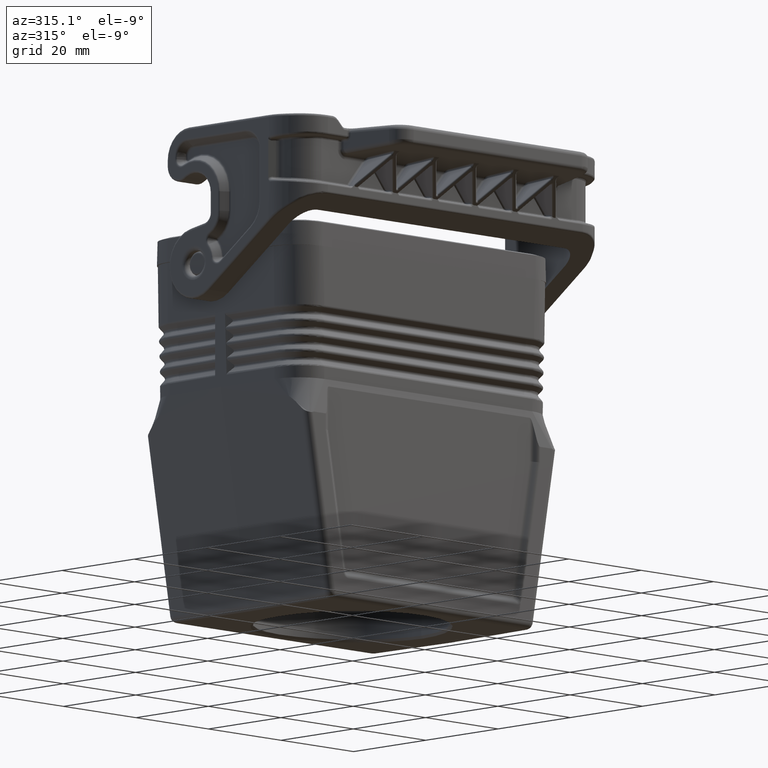
[diagram: clean part render]
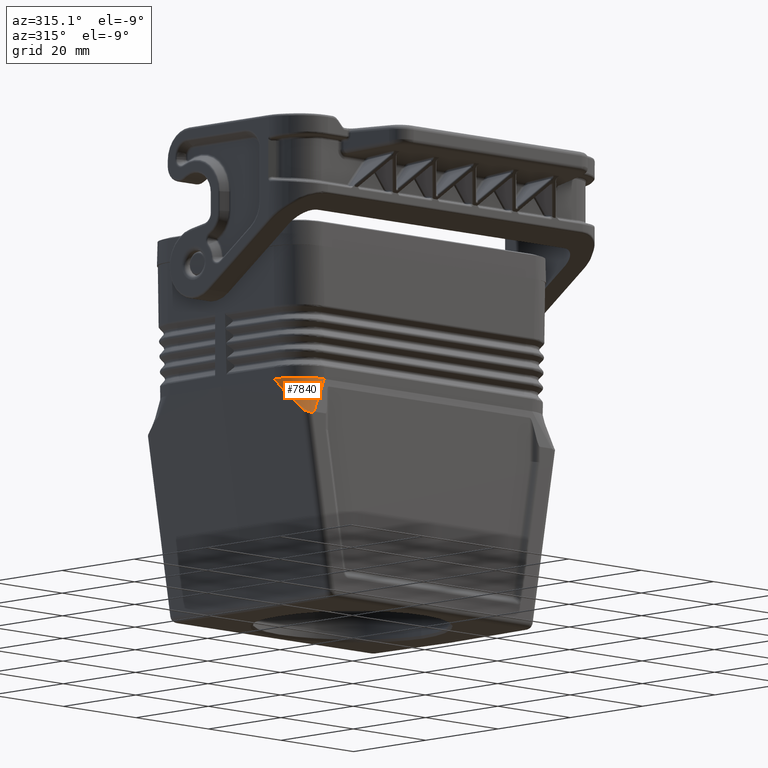
[diagram: same view with one face highlighted and labeled with its STEP entity id]
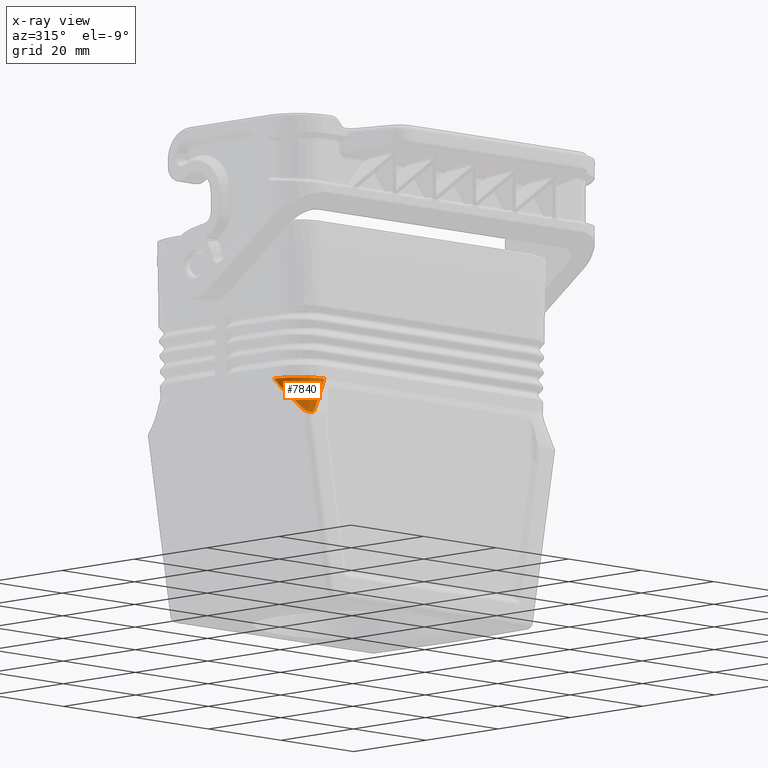
[diagram: x-ray of the same camera — body ghosted, the highlighted face saturated]
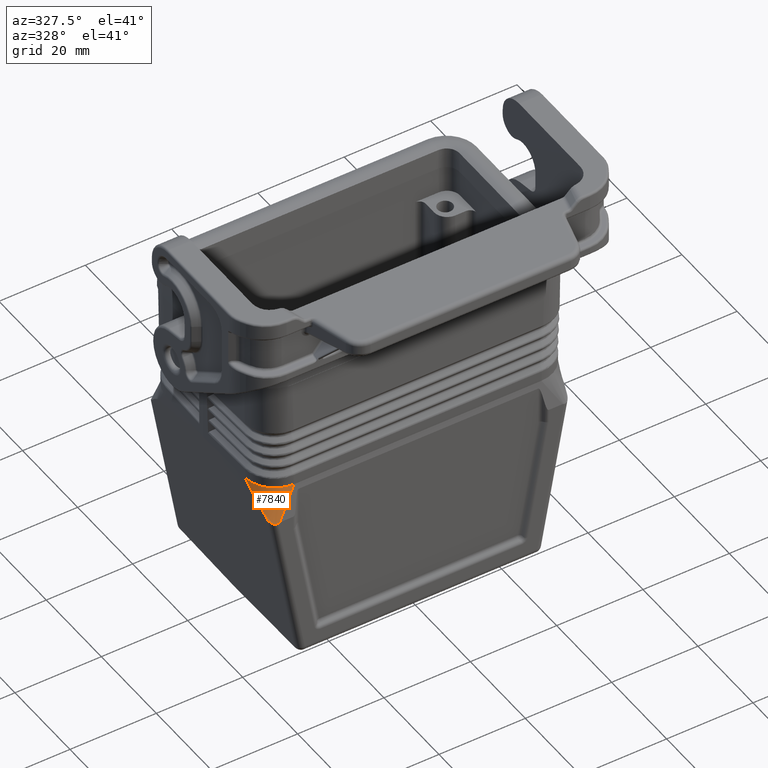
[diagram: same view with one face highlighted and labeled with its STEP entity id]
A machine part, auxiliary view. The second image highlights one B-rep face of the part: STEP entity #7840.
The next image is the same camera in x-ray: the body ghosted, the highlighted face saturated — about 0% of this face is hidden behind the body in this view.
A second angle (auxiliary view) of the same face is appended — the face is thin or edge-on in the first view.
In plain terms, the highlighted face is a freeform B-spline surface patch.
Its self-contained STEP definition (entity closure, byte-faithful):
#1180=CARTESIAN_POINT('',(116.867767352697,56.073696424318,
26.450398686016));
#1190=VERTEX_POINT('',#1180);
#1380=CARTESIAN_POINT('',(95.62,62.0761821389974,34.2285391921959));
#1390=DIRECTION('',(-0.00872653549837393,-0.984760073927079,
-0.17369929296727));
#1400=DIRECTION('',(0.,-0.17370590715595,0.984797572001032));
#1410=AXIS2_PLACEMENT_3D('',#1380,#1390,#1400);
#1420=PLANE('',#1410);
#1430=CARTESIAN_POINT('',(116.867766405432,56.0736933232706,
26.4503933502534));
#1440=CARTESIAN_POINT('',(116.867766405432,56.9774833987332,
26.4503933502534));
#1450=CARTESIAN_POINT('',(116.692767533118,57.8726780288106,
26.4503933616133));
#1460=CARTESIAN_POINT('',(116.238989326148,58.9888956286002,
26.4503933907643));
#1470=CARTESIAN_POINT('',(116.107889170004,59.2597434923264,
26.4503933992191));
#1480=CARTESIAN_POINT('',(115.664685174067,60.0429838624163,
26.4503934279893));
#1490=CARTESIAN_POINT('',(115.302677805598,60.5260731498051,
26.4503934513732));
#1500=CARTESIAN_POINT('',(114.461924513651,61.3891305380069,
26.4503935051613));
#1510=CARTESIAN_POINT('',(113.988477013475,61.7636596551609,
26.4503935355656));
#1520=CARTESIAN_POINT('',(113.21710676332,62.2272146131957,
26.4503935853971));
#1530=CARTESIAN_POINT('',(112.949783512782,62.365359813247,
26.4503936025656));
#1540=CARTESIAN_POINT('',(111.845826935375,62.8482016847684,
26.4503936729983));
#1550=CARTESIAN_POINT('',(110.955519998634,63.046574047537,
26.4503937297794));
#1560=CARTESIAN_POINT('',(110.052039626452,63.0702325087684,
26.4503937873198));
#1570=CARTESIAN_POINT('',(118.458948705005,61.2827214332063,
35.4132158993644));
#1580=CARTESIAN_POINT('',(118.458948705005,61.3778251516637,
35.4132158993644));
#1590=CARTESIAN_POINT('',(118.440263291828,61.4741379383824,
35.3941338360079));
#1600=CARTESIAN_POINT('',(118.393589619737,61.596499650854,
35.3451670965133));
#1610=CARTESIAN_POINT('',(118.37991437297,61.6270614770544,
35.330965079277));
#1620=CARTESIAN_POINT('',(118.332592479835,61.7178031469168,
35.2826379273788));
#1630=CARTESIAN_POINT('',(118.294611985075,61.7734879111231,
35.243358580478));
#1640=CARTESIAN_POINT('',(118.209428556507,61.8733990355231,
35.1530072431516));
#1650=CARTESIAN_POINT('',(118.160791470378,61.9190975942552,
35.101935252726));
#1660=CARTESIAN_POINT('',(118.079834029193,61.9782579225646,
35.0182301702533));
#1670=CARTESIAN_POINT('',(118.052364282882,61.9958720000834,
34.9893910963063));
#1680=CARTESIAN_POINT('',(117.941642968249,62.0581638700869,
34.8710809391624));
#1690=CARTESIAN_POINT('',(117.852469714337,62.0883659477026,
34.7757021332536));
#1700=CARTESIAN_POINT('',(117.762446999742,62.0990107875353,
34.6790478294574));
#1710=B_SPLINE_SURFACE_WITH_KNOTS('',3,1,((#1430,#1570),(#1440,#1580),(
#1450,#1590),(#1460,#1600),(#1470,#1610),(#1480,#1620),(#1490,#1630),(
#1500,#1640),(#1510,#1650),(#1520,#1660),(#1530,#1670),(#1540,#1680),(
#1550,#1690),(#1560,#1700)),.UNSPECIFIED.,.F.,.F.,.F.,(4,2,2,2,2,2,4),(2
,2),(0.,2.71136878210222,3.61515837613629,5.42273756420443,
7.23031675227258,8.13410634630665,10.8454751284089),(0.999995358485235,
8.79664513599187),.UNSPECIFIED.);
#1720=CARTESIAN_POINT('',(116.633089803291,62.1448906373101,
32.7833239832527));
#1730=CARTESIAN_POINT('',(116.577631400171,62.1564980022803,
32.7203040959771));
#1740=CARTESIAN_POINT('',(116.521685594274,62.168043434228,
32.6576598147648));
#1750=CARTESIAN_POINT('',(116.465277609285,62.1795261903627,
32.5953940835003));
#1760=CARTESIAN_POINT('',(116.40886958043,62.1910089554271,
32.5331283038146));
#1770=CARTESIAN_POINT('',(116.351999279014,62.2024290612974,
32.4712409845668));
#1780=CARTESIAN_POINT('',(116.294685638143,62.2137852664708,
32.4097382130701));
#1790=CARTESIAN_POINT('',(116.237371958708,62.225141479285,
32.3482354001926));
#1800=CARTESIAN_POINT('',(116.179614861316,62.2364338107152,
32.2871170295189));
#1810=CARTESIAN_POINT('',(116.121427162422,62.247660472388,
32.2263925960529));
#1820=CARTESIAN_POINT('',(116.063239432014,62.2588871401409,
32.1656681297002));
#1830=CARTESIAN_POINT('',(116.004621032332,62.2700481619607,
32.1053374688915));
#1840=CARTESIAN_POINT('',(115.945578602293,62.2811411039592,
32.0454140786283));
#1850=CARTESIAN_POINT('',(115.886536150537,62.2922340500381,
31.9854906663235));
#1860=CARTESIAN_POINT('',(115.827069607894,62.3032589472642,
31.9259743520342));
#1870=CARTESIAN_POINT('',(115.76717911071,62.3142125505764,
31.8668835262603));
#1880=CARTESIAN_POINT('',(115.707288605916,62.3251661552802,
31.8077926929789));
#1890=CARTESIAN_POINT('',(115.646974090187,62.3360485083045,
31.7491271116053));
#1900=CARTESIAN_POINT('',(115.586228537356,62.3468552921192,
31.6909116126678));
#1910=CARTESIAN_POINT('',(115.525482997855,62.3576620735627,
31.6326961265044));
#1920=CARTESIAN_POINT('',(115.464306365959,62.3683933461622,
31.5749303832633));
#1930=CARTESIAN_POINT('',(115.402683318945,62.3790433133686,
31.517648015464));
#1940=CARTESIAN_POINT('',(115.341060317645,62.3896932726745,
31.4603656901592));
#1950=CARTESIAN_POINT('',(115.278990842893,62.4002620174053,
31.4035662282703));
#1960=CARTESIAN_POINT('',(115.21644940456,62.4107416310863,
31.3472957916178));
#1970=CARTESIAN_POINT('',(115.153908064012,62.4212212283821,
31.2910254429457));
#1980=CARTESIAN_POINT('',(115.090894691913,62.4316118393973,
31.235283302221));
#1990=CARTESIAN_POINT('',(115.027370510908,62.4419023851602,
31.180134127909));
#2000=CARTESIAN_POINT('',(114.963846516948,62.452192900623,
31.1249851159816));
#2010=CARTESIAN_POINT('',(114.899811622231,62.4623835982981,
31.0704276721997));
#2020=CARTESIAN_POINT('',(114.835208347669,62.4724584536924,
31.0165555325139));
#2030=CARTESIAN_POINT('',(114.802906718489,62.4774958801262,
30.9896194694258));
#2040=CARTESIAN_POINT('',(114.770466450479,62.482503699761,
30.9628582224227));
#2050=CARTESIAN_POINT('',(114.737847505925,62.4874837797064,
30.936263217695));
#2060=CARTESIAN_POINT('',(114.705231055839,62.4924634788104,
30.9096702467662));
#2070=CARTESIAN_POINT('',(114.672447750433,62.4974136202223,
30.8832532310952));
#2080=CARTESIAN_POINT('',(114.639492058023,62.5023297322414,
30.8570378001746));
#2090=CARTESIAN_POINT('',(114.606536339854,62.5072458481033,
30.8308223487627));
#2100=CARTESIAN_POINT('',(114.573408260863,62.512127959473,
30.8048083396151));
#2110=CARTESIAN_POINT('',(114.5400978512,62.516970970647,
30.7790251628804));
#2120=CARTESIAN_POINT('',(114.506787417063,62.5218139853792,
30.7532419672018));
#2130=CARTESIAN_POINT('',(114.473294658141,62.5266179430084,
30.7276893593315));
#2140=CARTESIAN_POINT('',(114.439603688352,62.5313768010519,
30.7024023942559));
#2150=CARTESIAN_POINT('',(114.405912711979,62.5361356600253,
30.6771154242392));
#2160=CARTESIAN_POINT('',(114.372023491377,62.5408494938086,
30.6520936769168));
#2170=CARTESIAN_POINT('',(114.337912347572,62.5455107413725,
30.6273812079428));
#2180=CARTESIAN_POINT('',(114.303801245601,62.5501719832198,
30.6026687692759));
#2190=CARTESIAN_POINT('',(114.269468107097,62.5547807705875,
30.5782648677712));
#2200=CARTESIAN_POINT('',(114.23487889228,62.5593270126158,
30.5542284220635));
#2210=CARTESIAN_POINT('',(114.200289828528,62.5638732347887,
30.5301920813331));
#2220=CARTESIAN_POINT('',(114.165444398584,62.5683571571054,
30.5065218192389));
#2230=CARTESIAN_POINT('',(114.130294333259,62.5727643133775,
30.483302074503));
#2240=CARTESIAN_POINT('',(114.112719285279,62.5749678934341,
30.4716921920165));
#2250=CARTESIAN_POINT('',(114.095067711143,62.5771522158334,
30.4601953323288));
#2260=CARTESIAN_POINT('',(114.07733162851,62.5793148180773,
30.4488258572026));
#2270=CARTESIAN_POINT('',(114.059596057549,62.5814773579317,
30.437456710077));
#2280=CARTESIAN_POINT('',(114.041759260748,62.5836202262656,
30.4262041729728));
#2290=CARTESIAN_POINT('',(114.023821291448,62.5857389892089,
30.4150933803275));
#2300=CARTESIAN_POINT('',(114.005883301106,62.5878577546375,
30.4039825746488));
#2310=CARTESIAN_POINT('',(113.987844184425,62.5899524358983,
30.3930133907427));
#2320=CARTESIAN_POINT('',(113.96970038588,62.5920179556842,
30.3822147922974));
#2330=CARTESIAN_POINT('',(113.951556554532,62.5940834792043,
30.3714161743293));
#2340=CARTESIAN_POINT('',(113.933308001843,62.596119888844,
30.3607878738243));
#2350=CARTESIAN_POINT('',(113.914945959094,62.5981211322383,
30.3503646444366));
#2360=CARTESIAN_POINT('',(113.896583908231,62.6001223765169,
30.3399414104434));
#2370=CARTESIAN_POINT('',(113.878108201553,62.6020885443125,
30.3297227470509));
#2380=CARTESIAN_POINT('',(113.859503280617,62.604011935695,
30.3197530891006));
#2390=CARTESIAN_POINT('',(113.840898437702,62.6059353190117,
30.3097834729587));
#2400=CARTESIAN_POINT('',(113.822163941084,62.6078160968003,
30.3000619156035));
#2410=CARTESIAN_POINT('',(113.803275887038,62.6096436394831,
30.2906498807855));
#2420=CARTESIAN_POINT('',(113.784388132502,62.6114711531864,
30.2812379952149));
#2430=CARTESIAN_POINT('',(113.765345734031,62.6132457722406,
30.2721337566025));
#2440=CARTESIAN_POINT('',(113.746115113454,62.6149514488875,
30.2634298318944));
#2450=CARTESIAN_POINT('',(113.736501470625,62.6158041393142,
30.2590786242452));
#2460=CARTESIAN_POINT('',(113.726836895677,62.6166398630613,
30.2548261652342));
#2470=CARTESIAN_POINT('',(113.717097180555,62.6174571898363,
30.2506817798815));
#2480=CARTESIAN_POINT('',(113.707359981429,62.6182743054765,
30.246538465121));
#2490=CARTESIAN_POINT('',(113.697558731359,62.619072075722,
30.2425080436998));
#2500=CARTESIAN_POINT('',(113.687698921256,62.6198456684134,
30.2386176351577));
#2510=CARTESIAN_POINT('',(113.677839070871,62.6206192642653,
30.2347272107211));
#2520=CARTESIAN_POINT('',(113.667920543658,62.6213687266937,
30.2309765548467));
#2530=CARTESIAN_POINT('',(113.657944964532,62.6220883676643,
30.2273978330252));
#2540=CARTESIAN_POINT('',(113.647969377179,62.6228080092285,
30.2238191082521));
#2550=CARTESIAN_POINT('',(113.637936372168,62.6234979148789,
30.2204118510619));
#2560=CARTESIAN_POINT('',(113.62784302104,62.6241508925164,
30.2172169830221));
#2570=CARTESIAN_POINT('',(113.617749787619,62.6248038625389,
30.2140221522405));
#2580=CARTESIAN_POINT('',(113.607595293845,62.6254200657569,
30.2110388424664));
#2590=CARTESIAN_POINT('',(113.597372796324,62.6259895674254,
30.2083237161722));
#2600=CARTESIAN_POINT('',(113.587150744228,62.6265590442789,
30.2056087081842));
#2610=CARTESIAN_POINT('',(113.57685851404,62.6270821213766,
30.2031602819434));
#2620=CARTESIAN_POINT('',(113.566489590054,62.6275438183289,
30.201063693434));
#2630=B_SPLINE_CURVE_WITH_KNOTS('',3,(#1720,#1730,#1740,#1750,#1760,
#1770,#1780,#1790,#1800,#1810,#1820,#1830,#1840,#1850,#1860,#1870,#1880,
#1890,#1900,#1910,#1920,#1930,#1940,#1950,#1960,#1970,#1980,#1990,#2000,
#2010,#2020,#2030,#2040,#2050,#2060,#2070,#2080,#2090,#2100,#2110,#2120,
#2130,#2140,#2150,#2160,#2170,#2180,#2190,#2200,#2210,#2220,#2230,#2240,
#2250,#2260,#2270,#2280,#2290,#2300,#2310,#2320,#2330,#2340,#2350,#2360,
#2370,#2380,#2390,#2400,#2410,#2420,#2430,#2440,#2450,#2460,#2470,#2480,
#2490,#2500,#2510,#2520,#2530,#2540,#2550,#2560,#2570,#2580,#2590,#2600,
#2610,#2620),.UNSPECIFIED.,.F.,.F.,(4,3,3,3,3,3,3,3,3,3,3,3,3,3,3,3,3,3,
3,3,3,3,3,3,3,3,3,3,3,3,4),(0.,0.2543212804855,0.508770627312849,
0.763295054460754,1.0178494399547,1.27239674625233,1.52690786965612,
1.7813610847656,2.03574102941577,2.29003718725912,2.54424194295308,
2.67133212586875,2.79849760542328,2.92569738649076,3.05288996472593,
3.18004916579317,3.30716579056993,3.43424760844737,3.49778209373433,
3.56136344126345,3.62499995870063,3.68863856665145,3.7522456609083,
3.81581084563619,3.87934771000993,3.91114199032281,3.94300994613961,
3.97488935488126,4.00673515213693,4.03853288330411,4.07030091397632),
.UNSPECIFIED.);
#2640=SURFACE_CURVE('',#2630,(#1710,#1420),.CURVE_3D.);
#2650=CARTESIAN_POINT('',(116.633089803286,62.1448906373113,
32.7833239832588));
#2660=VERTEX_POINT('',#2650);
#2670=CARTESIAN_POINT('',(113.566489590054,62.627543818329,
30.201063693434));
#2680=VERTEX_POINT('',#2670);
#2690=EDGE_CURVE('',#2660,#2680,#2640,.T.);
#3310=CARTESIAN_POINT('',(118.120000000043,25.16326959705,
33.8049876223571));
#3320=DIRECTION('',(-1.,0.,0.));
#3330=DIRECTION('',(0.,0.,1.));
#3340=AXIS2_PLACEMENT_3D('',#3310,#3320,#3330);
#3350=PLANE('',#3340);
#4590=CARTESIAN_POINT('',(118.120000000043,60.4795624626931,
33.5896768623627));
#4600=VERTEX_POINT('',#4590);
#4630=CARTESIAN_POINT('',(118.120000000043,60.4795624626947,
33.589676862363));
#4640=CARTESIAN_POINT('',(118.120000000043,60.4675251821686,
33.5838119675431));
#4650=CARTESIAN_POINT('',(118.120000000043,60.4554014162256,
33.5781347359832));
#4660=CARTESIAN_POINT('',(118.120000000043,60.4431910129919,
33.5726717090792));
#4670=CARTESIAN_POINT('',(118.120000000043,60.4309806185187,
33.5672086860946));
#4680=CARTESIAN_POINT('',(118.120000000043,60.4186834043954,
33.5619596740668));
#4690=CARTESIAN_POINT('',(118.120000000043,60.4062972993191,
33.5569554195649));
#4700=CARTESIAN_POINT('',(118.120000000043,60.3939112431183,
33.5519511848098));
#4710=CARTESIAN_POINT('',(118.120000000036,60.3814359758827,
33.5471914269793));
#4720=CARTESIAN_POINT('',(118.120000000036,60.3688679218323,
33.5427132334677));
#4730=CARTESIAN_POINT('',(118.120000000036,60.35629998772,
33.538235082692));
#4740=CARTESIAN_POINT('',(118.120000000043,60.3436387211736,
33.5340381001687));
#4750=CARTESIAN_POINT('',(118.120000000043,60.3308801413462,
33.5301687290287));
#4760=CARTESIAN_POINT('',(118.120000000043,60.3181318944907,
33.5263024916311));
#4770=CARTESIAN_POINT('',(118.120000000041,60.30523868426,
33.5227488913071));
#4780=CARTESIAN_POINT('',(118.120000000041,60.2922214716012,
33.5195808242563));
#4790=CARTESIAN_POINT('',(118.120000000041,60.2792063799855,
33.5164132734149));
#4800=CARTESIAN_POINT('',(118.120000000031,60.2660761156856,
33.5136335214159));
#4810=CARTESIAN_POINT('',(118.120000000031,60.2528740826467,
33.5113281895997));
#4820=CARTESIAN_POINT('',(118.120000000031,60.23967211702,
33.5090228695549));
#4830=CARTESIAN_POINT('',(118.120000000038,60.226397218041,
33.507191342727));
#4840=CARTESIAN_POINT('',(118.120000000038,60.2130901987655,
33.5059316367571));
#4850=CARTESIAN_POINT('',(118.120000000038,60.1997835275778,
33.5046719637389));
#4860=CARTESIAN_POINT('',(118.120000000043,60.1864421637019,
33.5039833138561));
#4870=CARTESIAN_POINT('',(118.120000000043,60.1731104650293,
33.5039833138561));
#4880=B_SPLINE_CURVE_WITH_KNOTS('',3,(#4630,#4640,#4650,#4660,#4670,
#4680,#4690,#4700,#4710,#4720,#4730,#4740,#4750,#4760,#4770,#4780,#4790,
#4800,#4810,#4820,#4830,#4840,#4850,#4860,#4870),.UNSPECIFIED.,.F.,.F.,(
4,3,3,3,3,3,3,3,4),(0.,0.040152223897592,0.0802561968568261,
0.120306544497499,0.160315808546613,0.200403366368161,0.240614152455916,
0.280772688765914,0.320814728955825),.UNSPECIFIED.);
#4890=SURFACE_CURVE('',#4880,(#3350,#1710),.CURVE_3D.);
#4900=CARTESIAN_POINT('',(118.120000000043,60.1731104650293,
33.5039833138561));
#4910=VERTEX_POINT('',#4900);
#4920=EDGE_CURVE('',#4600,#4910,#4890,.T.);
#6290=CARTESIAN_POINT('',(110.052044216625,63.0702319305791,
26.4503986860161));
#6300=CARTESIAN_POINT('',(117.762078277644,62.0990572326702,
34.6786543241033));
#6310=B_SPLINE_CURVE_WITH_KNOTS('',1,(#6290,#6300),.UNSPECIFIED.,.F.,.F.
,(2,2),(0.999999999999961,8.79627228966545),.UNSPECIFIED.);
#6320=CARTESIAN_POINT('',(110.052044216625,63.0702319305791,
26.450398686016));
#6330=VERTEX_POINT('',#6320);
#6340=EDGE_CURVE('',#6330,#2680,#6310,.T.);
#6350=ORIENTED_EDGE('',*,*,#6340,.T.);
#6360=CARTESIAN_POINT('',(116.867767352697,56.073696424318,
26.4503986860161));
#6370=CARTESIAN_POINT('',(116.867767352697,56.9774860183521,
26.4503986860161));
#6380=CARTESIAN_POINT('',(116.69276857344,57.8726801728379,
26.4503986860161));
#6390=CARTESIAN_POINT('',(116.238990608829,58.9888971809634,
26.4503986860161));
#6400=CARTESIAN_POINT('',(116.10789052259,59.2597449016422,
26.4503986860161));
#6410=CARTESIAN_POINT('',(115.66468676233,60.0429848594726,
26.4503986860161));
#6420=CARTESIAN_POINT('',(115.302679586761,60.5260738924182,
26.4503986860161));
#6430=CARTESIAN_POINT('',(114.461926744622,61.3891308263025,
26.4503986860161));
#6440=CARTESIAN_POINT('',(113.988479497344,61.7636597476965,
26.4503986860161));
#6450=CARTESIAN_POINT('',(113.217109658208,62.2272144649864,
26.4503986860161));
#6460=CARTESIAN_POINT('',(112.949786550459,62.3653595932829,
26.4503986860161));
#6470=CARTESIAN_POINT('',(111.845830564347,62.8482012144418,
26.4503986860161));
#6480=CARTESIAN_POINT('',(110.955524104538,63.0465734770949,
26.4503986860161));
#6490=CARTESIAN_POINT('',(110.052044216625,63.0702319305791,
26.4503986860161));
#6500=B_SPLINE_CURVE_WITH_KNOTS('',3,(#6360,#6370,#6380,#6390,#6400,
#6410,#6420,#6430,#6440,#6450,#6460,#6470,#6480,#6490),.UNSPECIFIED.,.F.
,.F.,(4,2,2,2,2,2,4),(0.,2.71136878210222,3.61515837613629,
5.42273756420443,7.23031675227258,8.13410634630665,10.8454751284089),
.UNSPECIFIED.);
#6510=CARTESIAN_POINT('',(110.628428305075,63.0312953805327,
26.4503986860161));
#6520=VERTEX_POINT('',#6510);
#6530=EDGE_CURVE('',#6520,#6330,#6500,.T.);
#6540=ORIENTED_EDGE('',*,*,#6530,.T.);
#6550=EDGE_CURVE('',#1190,#6520,#6500,.T.);
#6560=ORIENTED_EDGE('',*,*,#6550,.T.);
#6570=CARTESIAN_POINT('',(115.849023241319,52.7386500789544,
20.7120098818667));
#6580=CARTESIAN_POINT('',(118.458948705005,61.2827214332063,
35.4132158993644));
#6590=B_SPLINE_CURVE_WITH_KNOTS('',1,(#6570,#6580),.UNSPECIFIED.,.F.,.F.
,(2,2),(-3.99175427695547,8.79664513599187),.UNSPECIFIED.);
#6600=EDGE_CURVE('',#1190,#4910,#6590,.T.);
#6610=ORIENTED_EDGE('',*,*,#6600,.F.);
#6620=ORIENTED_EDGE('',*,*,#4920,.T.);
#6630=CARTESIAN_POINT('',(116.620000000043,60.3668751818686,
34.2285391921959));
#6640=DIRECTION('',(0.,-0.17370590715595,0.984797572001032));
#6650=DIRECTION('',(0.,0.984797572001032,0.17370590715595));
#6660=AXIS2_PLACEMENT_3D('',#6630,#6640,#6650);
#6670=CYLINDRICAL_SURFACE('',#6660,1.5);
#6680=CARTESIAN_POINT('',(118.120000000043,60.4795624626947,
33.589676862363));
#6690=CARTESIAN_POINT('',(118.120000000043,60.490138143592,
33.594829625562));
#6700=CARTESIAN_POINT('',(118.119871934601,60.5008659720065,
33.5997034509997));
#6710=CARTESIAN_POINT('',(118.119609821284,60.5117217805889,
33.6043019131906));
#6720=CARTESIAN_POINT('',(118.119347709365,60.5225775312198,
33.6089003508336));
#6730=CARTESIAN_POINT('',(118.11895153798,60.5335608511166,
33.6132233029452));
#6740=CARTESIAN_POINT('',(118.118417357844,60.5446444267754,
33.6172778915659));
#6750=CARTESIAN_POINT('',(118.117853991622,60.5563335775434,
33.6215540113985));
#6760=CARTESIAN_POINT('',(118.117137106925,60.5681338490601,
33.6255315411734));
#6770=CARTESIAN_POINT('',(118.11626475763,60.580011357439,
33.6292227769475));
#6780=CARTESIAN_POINT('',(118.115392408022,60.5918888700893,
33.6329140140491));
#6790=CARTESIAN_POINT('',(118.114364615205,60.603843285941,
33.6363189438373));
#6800=CARTESIAN_POINT('',(118.113182220619,60.6158403625508,
33.6394530796414));
#6810=CARTESIAN_POINT('',(118.111999823158,60.627837468321,
33.6425872230635));
#6820=CARTESIAN_POINT('',(118.110662852233,60.6398769984429,
33.6454505894071));
#6830=CARTESIAN_POINT('',(118.109174810814,60.6519255000687,
33.6480609405742));
#6840=CARTESIAN_POINT('',(118.107687482466,60.6639682280365,
33.6506700408575));
#6850=CARTESIAN_POINT('',(118.106046967408,60.6760407632442,
33.6530313764321));
#6860=CARTESIAN_POINT('',(118.104251283681,60.6881480135757,
33.6551666908705));
#6870=CARTESIAN_POINT('',(118.100660431081,60.712359042869,
33.6594367075135));
#6880=CARTESIAN_POINT('',(118.096451775004,60.7366792199761,
33.6627976210347));
#6890=CARTESIAN_POINT('',(118.09164194473,60.7609843725665,
33.6653756058186));
#6900=CARTESIAN_POINT('',(118.086832104642,60.7852895747527,
33.667953595863));
#6910=CARTESIAN_POINT('',(118.081421010026,60.8095800961067,
33.6697485586315));
#6920=CARTESIAN_POINT('',(118.075440847733,60.8337366499993,
33.6708713374414));
#6930=CARTESIAN_POINT('',(118.069460547759,60.8578937600502,
33.671994142101));
#6940=CARTESIAN_POINT('',(118.062911833485,60.8819145285315,
33.6724445036935));
#6950=CARTESIAN_POINT('',(118.055840879669,60.9056906282834,
33.6723208053216));
#6960=CARTESIAN_POINT('',(118.048766929063,60.9294768047536,
33.6721970545241));
#6970=CARTESIAN_POINT('',(118.041142451931,60.9531141464706,
33.6714983946918));
#6980=CARTESIAN_POINT('',(118.032997208203,60.9765407413735,
33.6702967011449));
#6990=CARTESIAN_POINT('',(118.024850061192,60.9999728103227,
33.6690947268006));
#7000=CARTESIAN_POINT('',(118.01619126289,61.0231704868481,
33.667391211566));
#7010=CARTESIAN_POINT('',(118.007029882103,61.0461436009679,
33.6652416576434));
#7020=CARTESIAN_POINT('',(117.997867136123,61.0691201384512,
33.6630917834028));
#7030=CARTESIAN_POINT('',(117.988198595699,61.0918774761377,
33.6604942934291));
#7040=CARTESIAN_POINT('',(117.978051687977,61.1143752435779,
33.6574944087375));
#7050=CARTESIAN_POINT('',(117.966702117857,61.139539559261,
33.6541389626653));
#7060=CARTESIAN_POINT('',(117.954753905423,61.1643790940429,
33.6502800165217));
#7070=CARTESIAN_POINT('',(117.942251872153,61.1888390645981,
33.6459712149842));
#7080=CARTESIAN_POINT('',(117.929749006974,61.213300662765,
33.6416621267311));
#7090=CARTESIAN_POINT('',(117.916696141061,61.2373756782855,
33.6369046536509));
#7100=CARTESIAN_POINT('',(117.903134267902,61.261031348009,
33.6317406678487));
#7110=CARTESIAN_POINT('',(117.889565275744,61.2846994352433,
33.6265739713285));
#7120=CARTESIAN_POINT('',(117.875447804405,61.3080157417697,
33.6209847266126));
#7130=CARTESIAN_POINT('',(117.860815058563,61.3309457382899,
33.6150016254676));
#7140=CARTESIAN_POINT('',(117.846182327032,61.3538757123836,
33.6090185301743));
#7150=CARTESIAN_POINT('',(117.831034337859,61.3764192563416,
33.6026414810201));
#7160=CARTESIAN_POINT('',(117.815408891161,61.398542271162,
33.5958947589907));
#7170=CARTESIAN_POINT('',(117.799783453567,61.4206652730933,
33.589148040892));
#7180=CARTESIAN_POINT('',(117.783680643036,61.4423675572471,
33.58203161198));
#7190=CARTESIAN_POINT('',(117.767142961852,61.4636165554233,
33.5745667225897));
#7200=CARTESIAN_POINT('',(117.750605279569,61.4848655550103,
33.5671018327037));
#7210=CARTESIAN_POINT('',(117.733632864429,61.5056610449393,
33.5592884893459));
#7220=CARTESIAN_POINT('',(117.716272752145,61.5259730959047,
33.5511458041776));
#7230=CARTESIAN_POINT('',(117.698912624716,61.5462851645911,
33.5430031119053));
#7240=CARTESIAN_POINT('',(117.681164980065,61.5661135570711,
33.5345311187147));
#7250=CARTESIAN_POINT('',(117.663080977694,61.5854320239338,
33.5257473417224));
#7260=CARTESIAN_POINT('',(117.644996942567,61.604750525788,
33.5169635488199));
#7270=CARTESIAN_POINT('',(117.626576763039,61.6235588658084,
33.5078680383353));
#7280=CARTESIAN_POINT('',(117.607875086399,61.6418354123075,
33.498477025589));
#7290=CARTESIAN_POINT('',(117.589183852155,61.66010175379,
33.4890912564723));
#7300=CARTESIAN_POINT('',(117.570180610778,61.6778690792939,
33.4793955093525));
#7310=CARTESIAN_POINT('',(117.550837952382,61.6951829279469,
33.4693584966553));
#7320=CARTESIAN_POINT('',(117.531500837002,61.71249181498,
33.4593243602592));
#7330=CARTESIAN_POINT('',(117.511847685774,61.7293248891228,
33.4489605527565));
#7340=CARTESIAN_POINT('',(117.491922252794,61.7456649041163,
33.438266884421));
#7350=CARTESIAN_POINT('',(117.471996861025,61.7620048853145,
33.4275732382027));
#7360=CARTESIAN_POINT('',(117.451799352611,61.7778516106764,
33.4165497951901));
#7370=CARTESIAN_POINT('',(117.431378498258,61.7931903604328,
33.4051953588719));
#7380=CARTESIAN_POINT('',(117.410957663959,61.8085290951256,
33.3938409337046));
#7390=CARTESIAN_POINT('',(117.390313686429,61.823359661451,
33.3821555887362));
#7400=CARTESIAN_POINT('',(117.36949979502,61.8376711015854,
33.3701372973892));
#7410=CARTESIAN_POINT('',(117.348685903283,61.8519825419451,
33.358119005853));
#7420=CARTESIAN_POINT('',(117.327702337514,61.8657746720499,
33.3457678456127));
#7430=CARTESIAN_POINT('',(117.306606010004,61.8790413130994,
33.3330812685474));
#7440=CARTESIAN_POINT('',(117.28550966184,61.8923079671376,
33.3203946790613));
#7450=CARTESIAN_POINT('',(117.264300831809,61.9050489604708,
33.3073727527985));
#7460=CARTESIAN_POINT('',(117.243039061066,61.9172636913492,
33.2940129098437));
#7470=CARTESIAN_POINT('',(117.221777248128,61.929478446468,
33.280653040376));
#7480=CARTESIAN_POINT('',(117.20046281907,61.9411667835127,
33.2669553398918));
#7490=CARTESIAN_POINT('',(117.179156535306,61.9523342377554,
33.2529178681794));
#7500=CARTESIAN_POINT('',(117.15785002346,61.963501811544,
33.238880246198));
#7510=CARTESIAN_POINT('',(117.136552728008,61.9741480246116,
33.2245034292308));
#7520=CARTESIAN_POINT('',(117.115322817048,61.9842857844366,
33.2097855299732));
#7530=CARTESIAN_POINT('',(117.094088136835,61.9944258216876,
33.1950643243711));
#7540=CARTESIAN_POINT('',(117.072861540847,62.0040854452032,
33.1799607409073));
#7550=CARTESIAN_POINT('',(117.05170177673,62.01327473696,
33.1644705056897));
#7560=CARTESIAN_POINT('',(117.030542029703,62.022464021295,
33.148980282983));
#7570=CARTESIAN_POINT('',(117.009449597852,62.0311828291725,
33.1331035427893));
#7580=CARTESIAN_POINT('',(116.98848292918,62.0394467179119,
33.1168411844719));
#7590=CARTESIAN_POINT('',(116.967516241122,62.0477106142918,
33.1005788111189));
#7600=CARTESIAN_POINT('',(116.946675856503,62.0555194806785,
33.0839310286093));
#7610=CARTESIAN_POINT('',(116.926016894938,62.0628943429688,
33.0669048898643));
#7620=CARTESIAN_POINT('',(116.905359520715,62.0702686386076,
33.0498800593317));
#7630=CARTESIAN_POINT('',(116.88488361955,62.0772095992932,
33.0324776887005));
#7640=CARTESIAN_POINT('',(116.864592281415,62.0837562800219,
33.014668659161));
#7650=CARTESIAN_POINT('',(116.844304328775,62.0903018684743,
32.9968626009566));
#7660=CARTESIAN_POINT('',(116.824216490249,62.096447860856,
32.9786627707577));
#7670=CARTESIAN_POINT('',(116.804371390025,62.1022204428653,
32.9600857310667));
#7680=CARTESIAN_POINT('',(116.784526291821,62.107993024287,
32.9415086932666));
#7690=CARTESIAN_POINT('',(116.764924414115,62.1133921604472,
32.9225548376806));
#7700=CARTESIAN_POINT('',(116.745601083495,62.1184462162832,
32.903249226046));
#7710=CARTESIAN_POINT('',(116.726275140884,62.1235009552904,
32.8839410048161));
#7720=CARTESIAN_POINT('',(116.707239197403,62.128207924687,
32.8642931063329));
#7730=CARTESIAN_POINT('',(116.688487658431,62.132604154094,
32.8443033645528));
#7740=CARTESIAN_POINT('',(116.669734448194,62.1370007753233,
32.8243118411493));
#7750=CARTESIAN_POINT('',(116.651263332809,62.1410869434056,
32.8039753853455));
#7760=CARTESIAN_POINT('',(116.633089803286,62.1448906373113,
32.7833239832587));
#7770=B_SPLINE_CURVE_WITH_KNOTS('',3,(#6680,#6690,#6700,#6710,#6720,
#6730,#6740,#6750,#6760,#6770,#6780,#6790,#6800,#6810,#6820,#6830,#6840,
#6850,#6860,#6870,#6880,#6890,#6900,#6910,#6920,#6930,#6940,#6950,#6960,
#6970,#6980,#6990,#7000,#7010,#7020,#7030,#7040,#7050,#7060,#7070,#7080,
#7090,#7100,#7110,#7120,#7130,#7140,#7150,#7160,#7170,#7180,#7190,#7200,
#7210,#7220,#7230,#7240,#7250,#7260,#7270,#7280,#7290,#7300,#7310,#7320,
#7330,#7340,#7350,#7360,#7370,#7380,#7390,#7400,#7410,#7420,#7430,#7440,
#7450,#7460,#7470,#7480,#7490,#7500,#7510,#7520,#7530,#7540,#7550,#7560,
#7570,#7580,#7590,#7600,#7610,#7620,#7630,#7640,#7650,#7660,#7670,#7680,
#7690,#7700,#7710,#7720,#7730,#7740,#7750,#7760),.UNSPECIFIED.,.F.,.F.,(
4,3,3,3,3,3,3,3,3,3,3,3,3,3,3,3,3,3,3,3,3,3,3,3,3,3,3,3,3,3,3,3,3,3,3,3,
4),(0.,0.0353356245599117,0.0707476935590088,0.108144065279261,
0.145536502339652,0.182853637713232,0.220096701967544,0.294739985121946,
0.369494294928071,0.444098549241585,0.518580082155942,0.593051658418234,
0.667595287189242,0.751029826339631,0.834374267326965,0.917806187058365,
1.00145871964167,1.08524852402628,1.16907075586034,1.25280396991397,
1.33631488623066,1.41967190927176,1.50326296079981,1.58704364382724,
1.67093533469761,1.75484889530272,1.83868941861389,1.92236072586684,
2.00577045523494,2.08909255826306,2.17246680581775,2.25581265911005,
2.33910672889258,2.42246030261071,2.50581858117035,2.58911279121719,
2.67241469581208),.UNSPECIFIED.);
#7780=SURFACE_CURVE('',#7770,(#6670,#1710),.CURVE_3D.);
#7790=EDGE_CURVE('',#4600,#2660,#7780,.T.);
#7800=ORIENTED_EDGE('',*,*,#7790,.F.);
#7810=ORIENTED_EDGE('',*,*,#2690,.F.);
#7820=EDGE_LOOP('',(#7810,#7800,#6620,#6610,#6560,#6540,#6350));
#7830=FACE_OUTER_BOUND('',#7820,.T.);
#7840=ADVANCED_FACE('',(#7830),#1710,.T.);